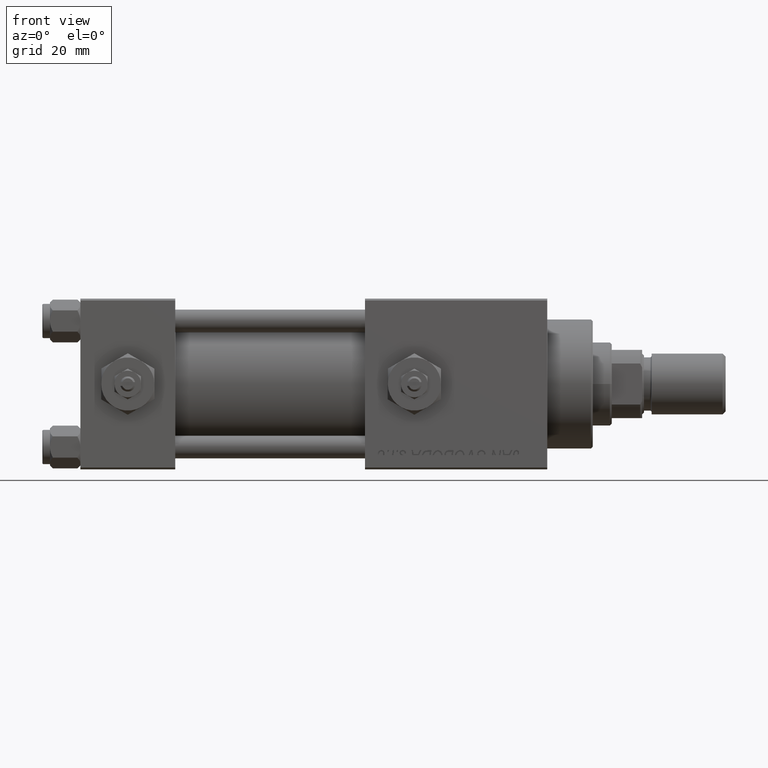
[diagram: clean part render]
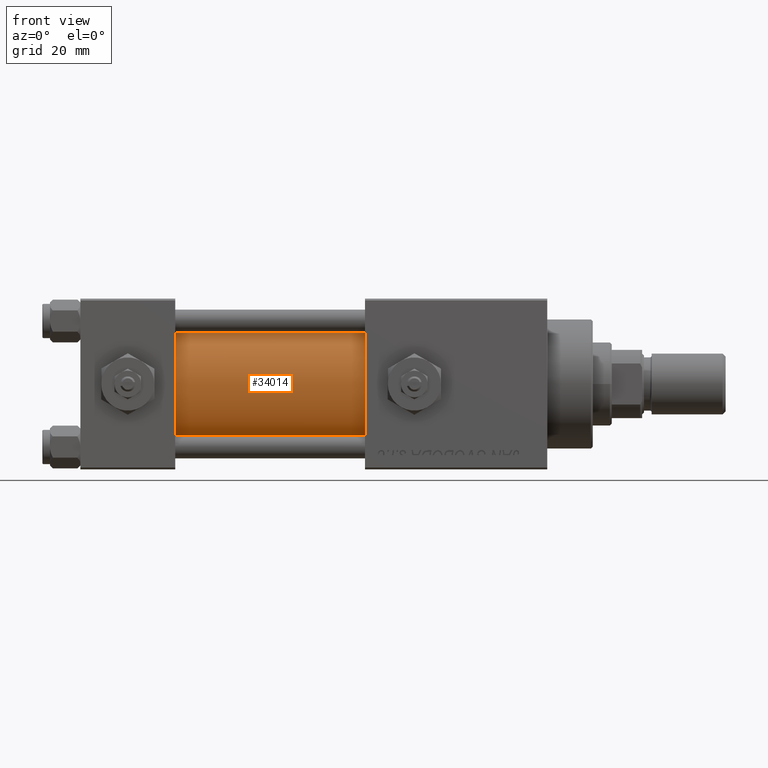
[diagram: same view with one face highlighted and labeled with its STEP entity id]
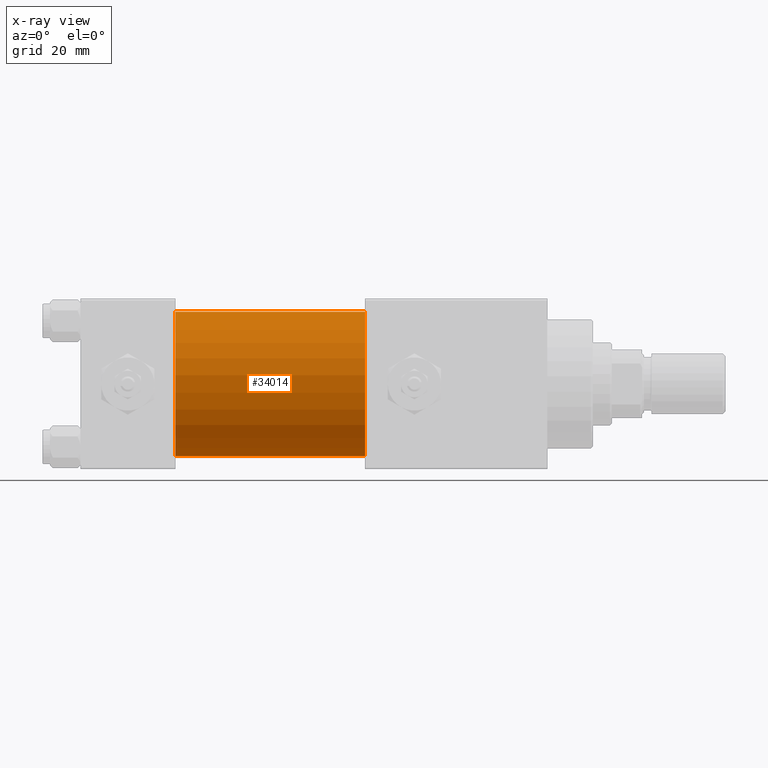
[diagram: x-ray of the same camera — body ghosted, the highlighted face saturated]
A machine part, front view. The second image highlights one B-rep face of the part: STEP entity #34014.
The next image is the same camera in x-ray: the body ghosted, the highlighted face saturated — about 0% of this face is hidden behind the body in this view.
In plain terms, the highlighted cylindrical surface (partial cylindrical patch) has radius 19 mm, axis along (-1, -0, -0).
Its self-contained STEP definition (entity closure, byte-faithful):
#33 = CARTESIAN_POINT ( 'NONE',  ( 75.00000000000001421, -2.602085213965210642E-15, 19.00000000000000000 ) ) ;
#442 = DIRECTION ( 'NONE',  ( 0.000000000000000000, 0.000000000000000000, 1.000000000000000000 ) ) ;
#711 = CARTESIAN_POINT ( 'NONE',  ( 75.00000000000001421, -2.602085213965210642E-15, 0.000000000000000000 ) ) ;
#777 = DIRECTION ( 'NONE',  ( 1.000000000000000000, 0.000000000000000000, 0.000000000000000000 ) ) ;
#2018 = CIRCLE ( 'NONE', #8869, 19.00000000000000000 ) ;
#6361 = EDGE_CURVE ( 'NONE', #16048, #39377, #10997, .T. ) ;
#8080 = CARTESIAN_POINT ( 'NONE',  ( 75.00000000000001421, -2.602085213965210642E-15, 19.00000000000000000 ) ) ;
#8272 = EDGE_CURVE ( 'NONE', #21298, #39993, #20591, .T. ) ;
#8869 = AXIS2_PLACEMENT_3D ( 'NONE', #25626, #41883, #13917 ) ;
#10157 = CARTESIAN_POINT ( 'NONE',  ( 25.00000000000000000, -2.752562955852396712E-16, -19.00000000000000000 ) ) ;
#10997 = LINE ( 'NONE', #17920, #48249 ) ;
#12252 = EDGE_CURVE ( 'NONE', #39993, #39377, #2018, .T. ) ;
#12423 = FACE_OUTER_BOUND ( 'NONE', #12752, .T. ) ;
#12752 = EDGE_LOOP ( 'NONE', ( #29516, #31576, #17775, #32501 ) ) ;
#13917 = DIRECTION ( 'NONE',  ( 0.000000000000000000, 0.000000000000000000, 1.000000000000000000 ) ) ;
#14347 = AXIS2_PLACEMENT_3D ( 'NONE', #711, #28637, #442 ) ;
#14500 = DIRECTION ( 'NONE',  ( 0.000000000000000000, 0.000000000000000000, -1.000000000000000000 ) ) ;
#16048 = VERTEX_POINT ( 'NONE', #43075 ) ;
#16592 = DIRECTION ( 'NONE',  ( -1.000000000000000000, -0.000000000000000000, -0.000000000000000000 ) ) ;
#17710 = VECTOR ( 'NONE', #16592, 1000.000000000000000 ) ;
#17775 = ORIENTED_EDGE ( 'NONE', *, *, #8272, .T. ) ;
#17920 = CARTESIAN_POINT ( 'NONE',  ( 75.00000000000001421, -2.752562955852396712E-16, -19.00000000000000000 ) ) ;
#20591 = LINE ( 'NONE', #8080, #17710 ) ;
#21298 = VERTEX_POINT ( 'NONE', #33 ) ;
#22229 = CARTESIAN_POINT ( 'NONE',  ( 75.00000000000001421, -2.602085213965210642E-15, 0.000000000000000000 ) ) ;
#22273 = CARTESIAN_POINT ( 'NONE',  ( 25.00000000000000000, -2.602085213965210642E-15, 19.00000000000000000 ) ) ;
#23064 = AXIS2_PLACEMENT_3D ( 'NONE', #22229, #777, #14500 ) ;
#25626 = CARTESIAN_POINT ( 'NONE',  ( 25.00000000000000000, -2.602085213965210642E-15, 0.000000000000000000 ) ) ;
#28637 = DIRECTION ( 'NONE',  ( -1.000000000000000000, -0.000000000000000000, -0.000000000000000000 ) ) ;
#29516 = ORIENTED_EDGE ( 'NONE', *, *, #6361, .F. ) ;
#31576 = ORIENTED_EDGE ( 'NONE', *, *, #50608, .F. ) ;
#32501 = ORIENTED_EDGE ( 'NONE', *, *, #12252, .T. ) ;
#34014 = ADVANCED_FACE ( 'NONE', ( #12423 ), #49690, .T. ) ;
#34159 = DIRECTION ( 'NONE',  ( -1.000000000000000000, -0.000000000000000000, -0.000000000000000000 ) ) ;
#39218 = CIRCLE ( 'NONE', #23064, 19.00000000000000000 ) ;
#39377 = VERTEX_POINT ( 'NONE', #10157 ) ;
#39993 = VERTEX_POINT ( 'NONE', #22273 ) ;
#41883 = DIRECTION ( 'NONE',  ( 1.000000000000000000, -0.000000000000000000, 0.000000000000000000 ) ) ;
#43075 = CARTESIAN_POINT ( 'NONE',  ( 75.00000000000001421, -2.752562955852396712E-16, -19.00000000000000000 ) ) ;
#48249 = VECTOR ( 'NONE', #34159, 1000.000000000000000 ) ;
#49690 = CYLINDRICAL_SURFACE ( 'NONE', #14347, 19.00000000000000000 ) ;
#50608 = EDGE_CURVE ( 'NONE', #21298, #16048, #39218, .T. ) ;